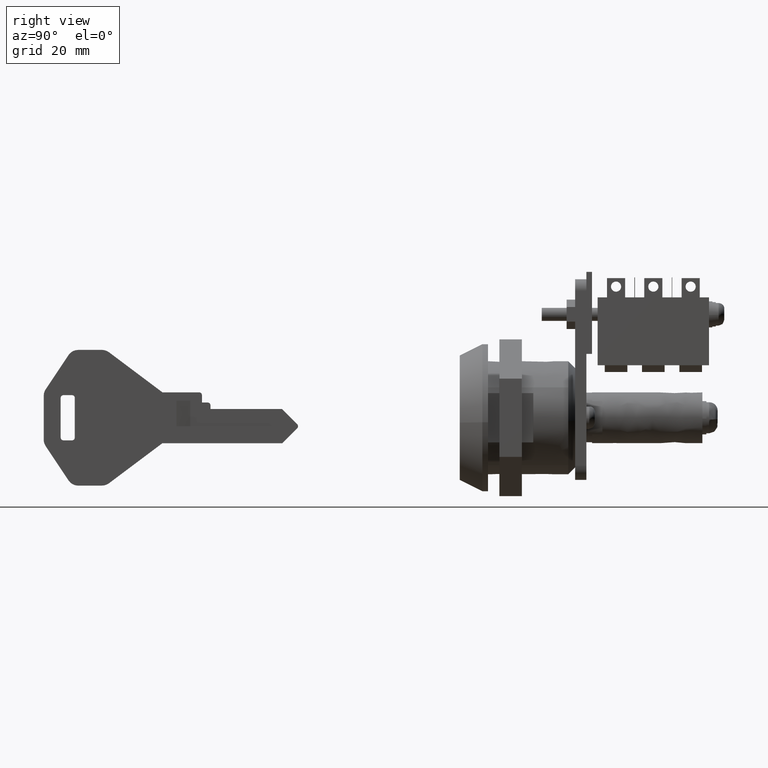
[diagram: clean part render]
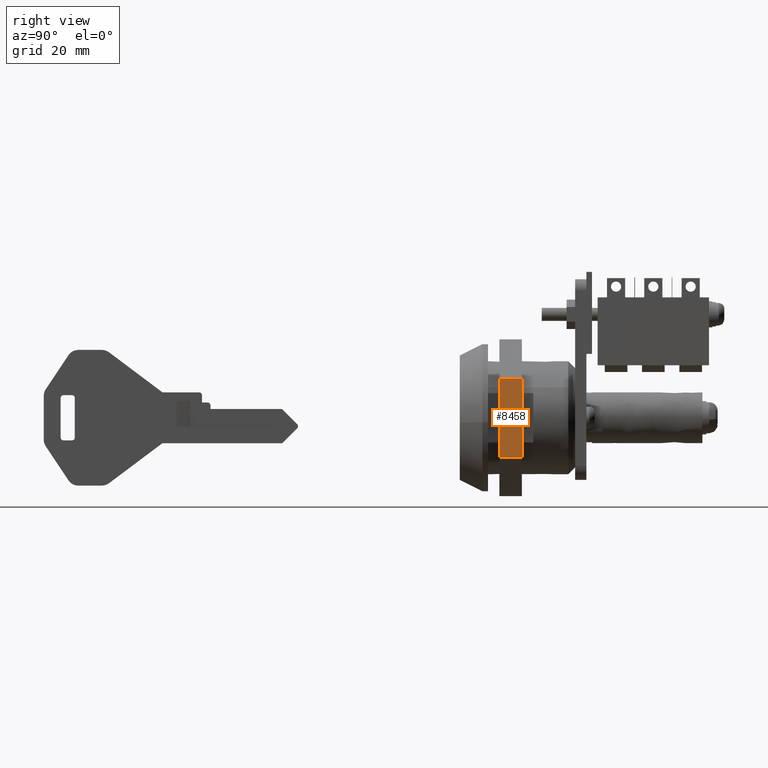
[diagram: same view with one face highlighted and labeled with its STEP entity id]
A machine part, right view. The second image highlights one B-rep face of the part: STEP entity #8458.
In plain terms, the highlighted face is a freeform B-spline surface patch.
Its self-contained STEP definition (entity closure, byte-faithful):
#8339=CARTESIAN_POINT('',(7.000000000000120,-12.0,-6.928232050676881));
#8340=VERTEX_POINT('',#8339);
#8346=CARTESIAN_POINT('',(7.000000000000120,-12.0,6.928207000000139));
#8347=VERTEX_POINT('',#8346);
#8348=CARTESIAN_POINT('',(7.000000000000120,-12.0,-6.928232050676881));
#8349=CARTESIAN_POINT('',(7.000000000000120,-12.0,6.928207000000139));
#8350=QUASI_UNIFORM_CURVE('',1,(#8348,#8349),.UNSPECIFIED.,.F.,.U.);
#8351=EDGE_CURVE('',#8340,#8347,#8350,.T.);
#8381=CARTESIAN_POINT('',(11.000000000000121,-12.0,6.928207000000139));
#8382=VERTEX_POINT('',#8381);
#8388=CARTESIAN_POINT('',(11.000000000000121,-12.0,-6.928232050676881));
#8389=VERTEX_POINT('',#8388);
#8390=CARTESIAN_POINT('',(11.000000000000121,-12.0,-6.928232050676881));
#8391=CARTESIAN_POINT('',(11.000000000000121,-12.0,6.928207000000139));
#8392=QUASI_UNIFORM_CURVE('',1,(#8390,#8391),.UNSPECIFIED.,.F.,.U.);
#8393=EDGE_CURVE('',#8389,#8382,#8392,.T.);
#8429=CARTESIAN_POINT('',(11.000000000000121,-12.0,6.928207000000139));
#8430=CARTESIAN_POINT('',(7.000000000000120,-12.0,6.928207000000139));
#8431=QUASI_UNIFORM_CURVE('',1,(#8429,#8430),.UNSPECIFIED.,.F.,.U.);
#8432=EDGE_CURVE('',#8382,#8347,#8431,.T.);
#8443=CARTESIAN_POINT('',(6.800200007752896,-12.0,7.620336103724990));
#8444=CARTESIAN_POINT('',(6.800200007752896,-12.0,-7.620361526060387));
#8445=CARTESIAN_POINT('',(11.199800099535700,-12.0,7.620336103724990));
#8446=CARTESIAN_POINT('',(11.199800099535700,-12.0,-7.620361526060387));
#8447=B_SPLINE_SURFACE_WITH_KNOTS('',1,1,((#8443,#8445),(#8444,#8446)),.UNSPECIFIED.,.F.,.F.,.U.,(2,2),(2,2),(0.0,15.240697629785380),(0.0,4.399600091782808),.UNSPECIFIED.);
#8448=ORIENTED_EDGE('',*,*,#8351,.F.);
#8449=CARTESIAN_POINT('',(11.000000000000121,-12.0,-6.928232050676881));
#8450=CARTESIAN_POINT('',(7.000000000000120,-12.0,-6.928232050676881));
#8451=QUASI_UNIFORM_CURVE('',1,(#8449,#8450),.UNSPECIFIED.,.F.,.U.);
#8452=EDGE_CURVE('',#8389,#8340,#8451,.T.);
#8453=ORIENTED_EDGE('',*,*,#8452,.F.);
#8454=ORIENTED_EDGE('',*,*,#8393,.T.);
#8455=ORIENTED_EDGE('',*,*,#8432,.T.);
#8456=EDGE_LOOP('',(#8448,#8453,#8454,#8455));
#8457=FACE_OUTER_BOUND('',#8456,.T.);
#8458=ADVANCED_FACE('',(#8457),#8447,.T.);